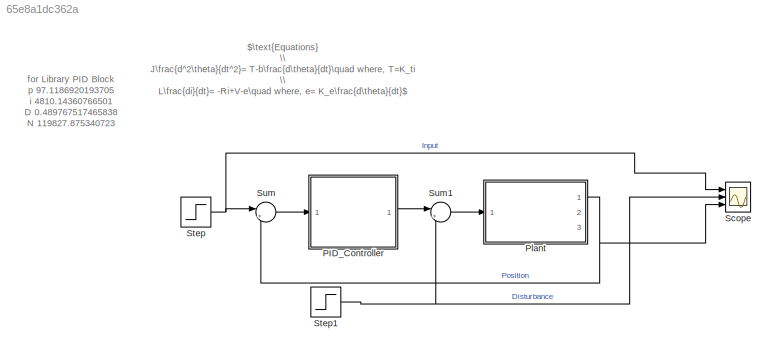
MODEL slx_65e8a1dc362a
KIND model
CONFIG AbsTol = auto
CONFIG EnableMultiTasking = off
CONFIG FixedStep = auto
CONFIG MaxStep = auto
CONFIG MinStep = auto
CONFIG RelTol = 1e-3
CONFIG SampleTimeConstraint = Unconstrained
CONFIG SolverName = VariableStepAuto
CONFIG StartTime = 0.0
CONFIG StopTime = 10.0
BLOCK [ModelReference] PID_Controller
  ModelNameDialog = PID_Controller
  ModelReferenceVersion = 1.12
  Ports = [1, 1]
  UsingDefaultArgumentValue = 0,0,0,0
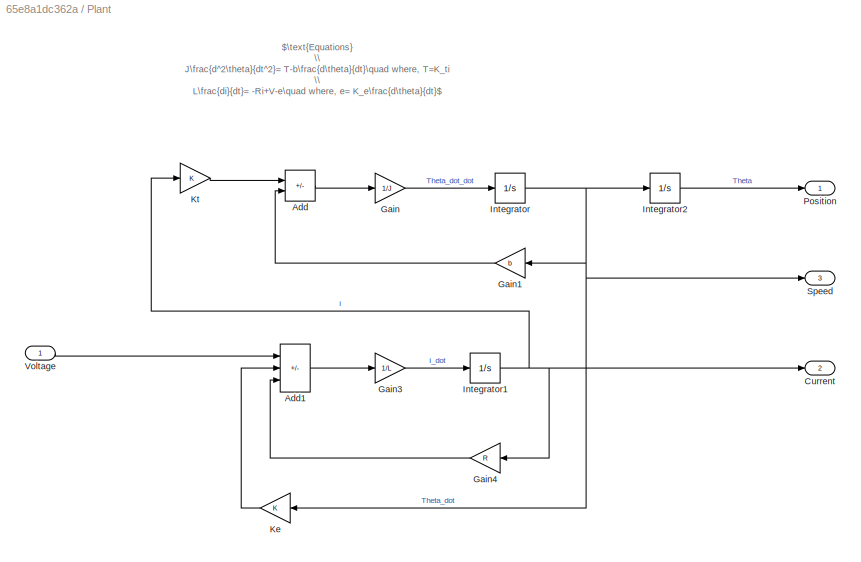
BLOCK [SubSystem] Plant
  Ports = [1, 3]
  RequestExecContextInheritance = off
BLOCK [Sum] Plant/Add
  IconShape = rectangular
  Inputs = +-
  Ports = [2, 1]
BLOCK [Sum] Plant/Add1
  IconShape = rectangular
  Inputs = +--
  Ports = [3, 1]
BLOCK [Outport] Plant/Current
  Port = 2
BLOCK [Gain] Plant/Gain
  Gain = 1/J
BLOCK [Gain] Plant/Gain1
  Gain = b
  NameLocation = top
BLOCK [Gain] Plant/Gain3
  Gain = 1/L
BLOCK [Gain] Plant/Gain4
  Gain = R
  NameLocation = top
BLOCK [Integrator] Plant/Integrator
  Ports = [1, 1]
BLOCK [Integrator] Plant/Integrator1
  Ports = [1, 1]
BLOCK [Integrator] Plant/Integrator2
  Ports = [1, 1]
BLOCK [Gain] Plant/Ke
  Gain = K
  NameLocation = top
BLOCK [Gain] Plant/Kt
  Gain = K
BLOCK [Outport] Plant/Position
BLOCK [Outport] Plant/Speed
  Port = 3
BLOCK [Inport] Plant/Voltage
BLOCK [Scope] Scope
  Floating = off
  NumInputPorts = 3
  Ports = [3]
  ScopeSpecificationString = Simulink.scopes.TimeScopeBlockCfg('CurrentConfiguration', extmgr.ConfigurationSet(extmgr.Configuration('Core','General UI',true),extmgr.Configuration('Core','Source UI',true),extmgr.Configuration('Sources','WiredSimulink',true),extmgr.Configuration('Visuals','Time Domain',true,'SerializedDisplays',{struct('MinYLimReal','0.9','MaxYLimReal','1.1','YLabelReal','','MinYLimMag','0.9','MaxYLimMag','1.1'...<+2801ch>
BLOCK [Step] Step
  SampleTime = 0
  Time = 0.2
BLOCK [Step] Step1
  SampleTime = 0
  Time = 0.3
BLOCK [Sum] Sum
  Inputs = |+-
  Ports = [2, 1]
BLOCK [Sum] Sum1
  Inputs = |+-
  Ports = [2, 1]
ANNOTATION (root): $\text{Equations} \\ J\frac{d^2\theta}{dt^2}= T-b\frac{d\theta}{dt}\quad where, T=K_ti \\ L\frac{di}{dt}= -Ri+V-e\quad where, e= K_e\frac{d\theta}{dt}$
ANNOTATION (root): for Library PID Block p 97.1186920193705 i 4810.14360766501 D 0.489767517465838 N 119827.875340723
ANNOTATION Plant: $\text{Equations} \\ J\frac{d^2\theta}{dt^2}= T-b\frac{d\theta}{dt}\quad where, T=K_ti \\ L\frac{di}{dt}= -Ri+V-e\quad where, e= K_e\frac{d\theta}{dt}$
LINE PID_Controller:1 -> Sum1:1
LINE Plant/Add1:1 -> Plant/Gain3:1
LINE Plant/Add:1 -> Plant/Gain:1
LINE Plant/Gain1:1 -> Plant/Add:2
LINE Plant/Gain3:1 -> Plant/Integrator1:1
LINE Plant/Gain4:1 -> Plant/Add1:3
LINE Plant/Gain:1 -> Plant/Integrator:1
NET Plant/Integrator1:1 -> Plant/Current:1, Plant/Gain4:1, Plant/Kt:1
LINE Plant/Integrator2:1 -> Plant/Position:1
NET Plant/Integrator:1 -> Plant/Gain1:1, Plant/Integrator2:1, Plant/Ke:1, Plant/Speed:1
LINE Plant/Ke:1 -> Plant/Add1:2
LINE Plant/Kt:1 -> Plant/Add:1
LINE Plant/Voltage:1 -> Plant/Add1:1
NET Plant:1 -> Scope:3, Sum:2
NET Step1:1 -> Scope:2, Sum1:2
NET Step:1 -> Scope:1, Sum:1
LINE Sum1:1 -> Plant:1
LINE Sum:1 -> PID_Controller:1
note: NET lines group one-source signal fan-out (src -> all destinations, sorted); 1:1 wires keep LINE
